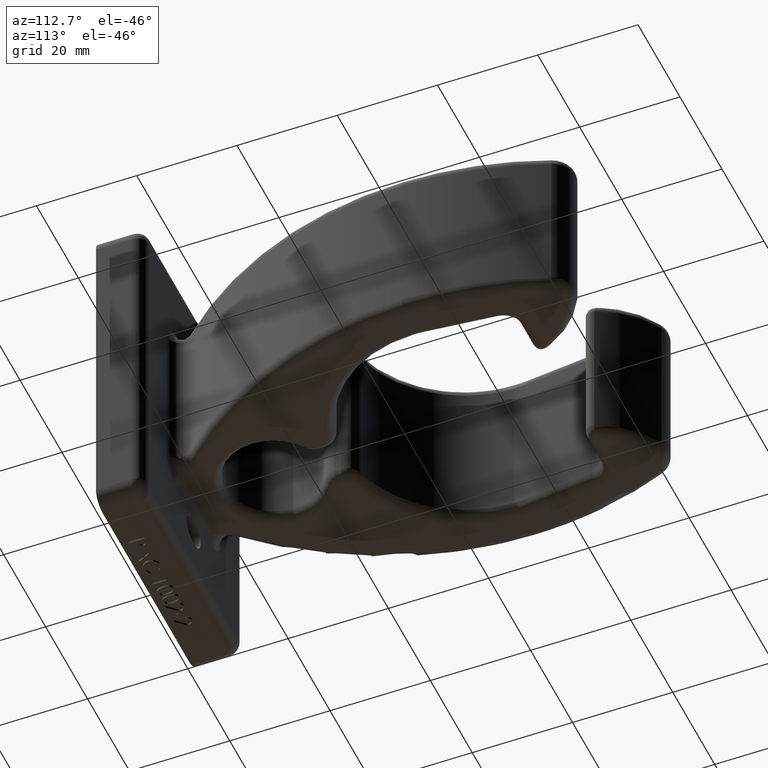
[diagram: clean part render]
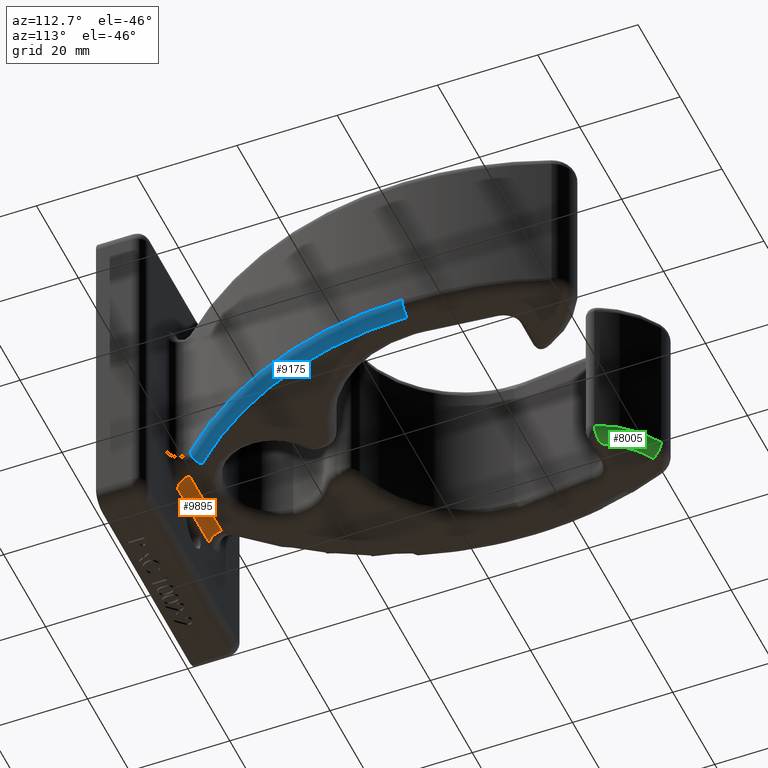
[diagram: same view with three faces highlighted in distinct colors, each labeled with its STEP entity id]
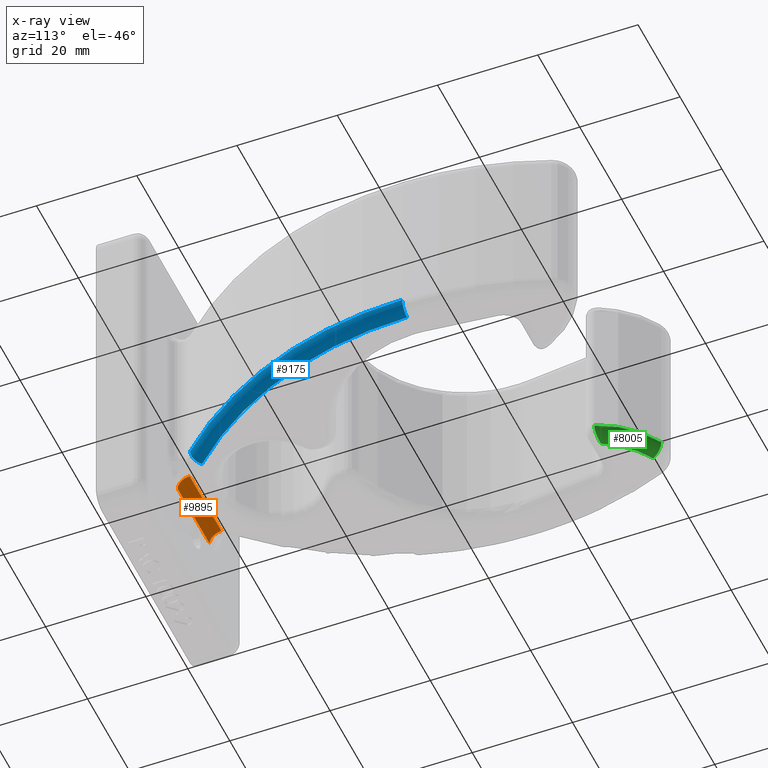
[diagram: x-ray of the same camera — body ghosted, the three highlighted faces saturated]
A machine part, auxiliary view with three faces highlighted in distinct colors.
The next image is the same camera in x-ray (body ghosted, the three faces saturated) — at least one of them is partly hidden behind the body in this view.
Their STEP definitions:

[orange] entity #9895 — the highlighted cylindrical surface (edge-blend (fillet) strip) has radius 2.3812 mm, axis along (-1, -0, 0).
#174 = ORIENTED_EDGE ( 'NONE', *, *, #13559, .F. ) ;
#458 = CIRCLE ( 'NONE', #1889, 0.09375000000000005600 ) ;
#734 = DIRECTION ( 'NONE',  ( -1.000000000000000000, -1.214154663850783700E-016, -0.0000000000000000000 ) ) ;
#741 = CIRCLE ( 'NONE', #5618, 0.09375000000000005600 ) ;
#1003 = VERTEX_POINT ( 'NONE', #12950 ) ;
#1889 = AXIS2_PLACEMENT_3D ( 'NONE', #2421, #11180, #3666 ) ;
#2278 = EDGE_CURVE ( 'NONE', #6299, #1003, #741, .T. ) ;
#2392 = VERTEX_POINT ( 'NONE', #9198 ) ;
#2421 = CARTESIAN_POINT ( 'NONE',  ( -0.2986596067394011700, 0.4687500000000000000, -0.7812500000000000000 ) ) ;
#2732 = CARTESIAN_POINT ( 'NONE',  ( 0.2986596067393987300, 0.4687500000000001700, -0.7812500000000000000 ) ) ;
#3180 = CARTESIAN_POINT ( 'NONE',  ( -0.2811144237599468900, 0.4687500000000000000, -0.6875000000000000000 ) ) ;
#3666 = DIRECTION ( 'NONE',  ( 0.0000000000000000000, 0.0000000000000000000, -1.000000000000000000 ) ) ;
#3986 = DIRECTION ( 'NONE',  ( 0.0000000000000000000, 0.0000000000000000000, -1.000000000000000000 ) ) ;
#4637 = EDGE_CURVE ( 'NONE', #2392, #1003, #6296, .T. ) ;
#4772 = DIRECTION ( 'NONE',  ( 0.0000000000000000000, -1.000000000000000000, 0.0000000000000000000 ) ) ;
#5030 = CYLINDRICAL_SURFACE ( 'NONE', #7438, 0.09374999999999998600 ) ;
#5618 = AXIS2_PLACEMENT_3D ( 'NONE', #2732, #11494, #3986 ) ;
#6035 = DIRECTION ( 'NONE',  ( -1.000000000000000000, -1.214154663850783700E-016, 0.0000000000000000000 ) ) ;
#6296 = LINE ( 'NONE', #6763, #12961 ) ;
#6299 = VERTEX_POINT ( 'NONE', #12939 ) ;
#6763 = CARTESIAN_POINT ( 'NONE',  ( 0.2811144237599435500, 0.3750000000000001100, -0.7812500000000000000 ) ) ;
#6947 = VERTEX_POINT ( 'NONE', #8625 ) ;
#7258 = CARTESIAN_POINT ( 'NONE',  ( -0.3750000000000000600, 0.4687500000000000000, -0.7812500000000000000 ) ) ;
#7438 = AXIS2_PLACEMENT_3D ( 'NONE', #7258, #6035, #4772 ) ;
#8625 = CARTESIAN_POINT ( 'NONE',  ( -0.2986596067394011200, 0.4687500000000000000, -0.6875000000000000000 ) ) ;
#9198 = CARTESIAN_POINT ( 'NONE',  ( -0.2986596067394011700, 0.3750000000000000600, -0.7812499999999998900 ) ) ;
#9571 = LINE ( 'NONE', #3180, #15891 ) ;
#9644 = EDGE_LOOP ( 'NONE', ( #15004, #13237, #174, #14934 ) ) ;
#9895 = ADVANCED_FACE ( 'NONE', ( #15064 ), #5030, .F. ) ;
#11180 = DIRECTION ( 'NONE',  ( 1.000000000000000000, 0.0000000000000000000, -0.0000000000000000000 ) ) ;
#11494 = DIRECTION ( 'NONE',  ( 1.000000000000000000, 0.0000000000000000000, -0.0000000000000000000 ) ) ;
#12939 = CARTESIAN_POINT ( 'NONE',  ( 0.2986596067393986200, 0.4687500000000001100, -0.6875000000000000000 ) ) ;
#12950 = CARTESIAN_POINT ( 'NONE',  ( 0.2986596067393987300, 0.3750000000000001100, -0.7812500000000000000 ) ) ;
#12961 = VECTOR ( 'NONE', #15544, 39.37007874015748100 ) ;
#13080 = EDGE_CURVE ( 'NONE', #6299, #6947, #9571, .T. ) ;
#13237 = ORIENTED_EDGE ( 'NONE', *, *, #4637, .F. ) ;
#13559 = EDGE_CURVE ( 'NONE', #6947, #2392, #458, .T. ) ;
#14934 = ORIENTED_EDGE ( 'NONE', *, *, #13080, .F. ) ;
#15004 = ORIENTED_EDGE ( 'NONE', *, *, #2278, .T. ) ;
#15064 = FACE_OUTER_BOUND ( 'NONE', #9644, .T. ) ;
#15544 = DIRECTION ( 'NONE',  ( 1.000000000000000000, 1.214154663850783700E-016, 0.0000000000000000000 ) ) ;
#15891 = VECTOR ( 'NONE', #734, 39.37007874015748100 ) ;

[blue] entity #9175 — the highlighted toroidal blend (fillet) surface has major radius 70.6438 mm and minor (blend) radius 2.3813 mm.
#65 = CARTESIAN_POINT ( 'NONE',  ( -1.614275554149117600, 2.539502731733396700, -0.5937499999999998900 ) ) ;
#496 = EDGE_CURVE ( 'NONE', #16307, #14736, #12721, .T. ) ;
#929 = DIRECTION ( 'NONE',  ( 1.000000000000000000, 0.0000000000000000000, 0.0000000000000000000 ) ) ;
#1375 = ORIENTED_EDGE ( 'NONE', *, *, #6726, .T. ) ;
#1614 = AXIS2_PLACEMENT_3D ( 'NONE', #11662, #4137, #12920 ) ;
#1775 = VERTEX_POINT ( 'NONE', #9083 ) ;
#2971 = ORIENTED_EDGE ( 'NONE', *, *, #9591, .F. ) ;
#3104 = TOROIDAL_SURFACE ( 'NONE', #9732, 2.781250000000000400, 0.09375000000000001400 ) ;
#3105 = CARTESIAN_POINT ( 'NONE',  ( 0.4456202960979007700, 0.5340654362698487000, -0.5991520622907808800 ) ) ;
#3138 = EDGE_CURVE ( 'NONE', #16307, #12354, #4466, .T. ) ;
#3569 = CARTESIAN_POINT ( 'NONE',  ( 1.260724445850882800, 2.539502731733396700, -0.5937499999999998900 ) ) ;
#4137 = DIRECTION ( 'NONE',  ( 0.0000000000000000000, -1.000000000000000000, 0.0000000000000000000 ) ) ;
#4466 = CIRCLE ( 'NONE', #1614, 0.09375000000000005600 ) ;
#5930 = DIRECTION ( 'NONE',  ( -0.0000000000000000000, -0.0000000000000000000, -1.000000000000000000 ) ) ;
#6187 = DIRECTION ( 'NONE',  ( -0.6976802386851277400, -0.7164092995964410600, -0.0000000000000000000 ) ) ;
#6726 = EDGE_CURVE ( 'NONE', #13401, #1775, #8950, .T. ) ;
#6846 = FACE_OUTER_BOUND ( 'NONE', #15747, .T. ) ;
#6873 = AXIS2_PLACEMENT_3D ( 'NONE', #12003, #5930, #15996 ) ;
#7037 = CIRCLE ( 'NONE', #9432, 2.875000000000000400 ) ;
#7753 = ORIENTED_EDGE ( 'NONE', *, *, #496, .F. ) ;
#8113 = CARTESIAN_POINT ( 'NONE',  ( 0.4458589326717843900, 0.5341421915284231300, -0.5964625669004657300 ) ) ;
#8184 = CARTESIAN_POINT ( 'NONE',  ( 0.3782378103534825800, 0.5990795678903838600, -0.6875000000000000000 ) ) ;
#8478 = DIRECTION ( 'NONE',  ( 0.0000000000000000000, 0.0000000000000000000, 1.000000000000000000 ) ) ;
#8883 = DIRECTION ( 'NONE',  ( 0.0000000000000000000, 0.0000000000000000000, 1.000000000000000000 ) ) ;
#8950 = B_SPLINE_CURVE_WITH_KNOTS ( 'NONE', 3,
 ( #11658, #8113, #3105, #11877 ),
 .UNSPECIFIED., .F., .F.,
 ( 4, 4 ),
 ( 0.0000000000000000000, 0.0002058276739516272900 ),
 .UNSPECIFIED. ) ;
#9083 = CARTESIAN_POINT ( 'NONE',  ( 0.4451519275033559700, 0.5339147839451919800, -0.6018193469022892200 ) ) ;
#9175 = ADVANCED_FACE ( 'NONE', ( #6846 ), #3104, .T. ) ;
#9432 = AXIS2_PLACEMENT_3D ( 'NONE', #16023, #8478, #929 ) ;
#9591 = EDGE_CURVE ( 'NONE', #13401, #12354, #7037, .T. ) ;
#9732 = AXIS2_PLACEMENT_3D ( 'NONE', #65, #8883, #10127 ) ;
#10127 = DIRECTION ( 'NONE',  ( 1.000000000000000000, 0.0000000000000000000, 0.0000000000000000000 ) ) ;
#10136 = ORIENTED_EDGE ( 'NONE', *, *, #3138, .T. ) ;
#10151 = CIRCLE ( 'NONE', #13540, 0.09375000000000000000 ) ;
#11220 = EDGE_CURVE ( 'NONE', #14736, #1775, #10151, .T. ) ;
#11658 = CARTESIAN_POINT ( 'NONE',  ( 0.4458589326717843900, 0.5341421915284232400, -0.5937499999999998900 ) ) ;
#11662 = CARTESIAN_POINT ( 'NONE',  ( 1.166974445850882600, 2.539502731733396700, -0.5937499999999998900 ) ) ;
#11877 = CARTESIAN_POINT ( 'NONE',  ( 0.4451519275033559700, 0.5339147839451919800, -0.6018193469022892200 ) ) ;
#12003 = CARTESIAN_POINT ( 'NONE',  ( -1.614275554149117600, 2.539502731733396700, -0.6875000000000000000 ) ) ;
#12347 = ORIENTED_EDGE ( 'NONE', *, *, #11220, .F. ) ;
#12354 = VERTEX_POINT ( 'NONE', #3569 ) ;
#12721 = CIRCLE ( 'NONE', #6873, 2.781250000000000400 ) ;
#12920 = DIRECTION ( 'NONE',  ( 0.0000000000000000000, 0.0000000000000000000, -1.000000000000000000 ) ) ;
#13401 = VERTEX_POINT ( 'NONE', #14252 ) ;
#13540 = AXIS2_PLACEMENT_3D ( 'NONE', #13688, #6187, #14970 ) ;
#13688 = CARTESIAN_POINT ( 'NONE',  ( 0.3782378103534825800, 0.5990795678903838600, -0.5937500000000000000 ) ) ;
#14252 = CARTESIAN_POINT ( 'NONE',  ( 0.4458589326717843900, 0.5341421915284232400, -0.5937499999999998900 ) ) ;
#14634 = CARTESIAN_POINT ( 'NONE',  ( 1.166974445850882600, 2.539502731733396700, -0.6875000000000000000 ) ) ;
#14736 = VERTEX_POINT ( 'NONE', #8184 ) ;
#14970 = DIRECTION ( 'NONE',  ( 0.7164092995964410600, -0.6976802386851276300, 0.0000000000000000000 ) ) ;
#15747 = EDGE_LOOP ( 'NONE', ( #7753, #10136, #2971, #1375, #12347 ) ) ;
#15996 = DIRECTION ( 'NONE',  ( 1.000000000000000000, 0.0000000000000000000, 0.0000000000000000000 ) ) ;
#16023 = CARTESIAN_POINT ( 'NONE',  ( -1.614275554149117600, 2.539502731733396700, -0.5937499999999998900 ) ) ;
#16307 = VERTEX_POINT ( 'NONE', #14634 ) ;

[green] entity #8005 — the highlighted toroidal blend (fillet) surface has major radius 16.6687 mm and minor (blend) radius 2.3813 mm.
#246 = AXIS2_PLACEMENT_3D ( 'NONE', #9191, #10447, #11704 ) ;
#412 = DIRECTION ( 'NONE',  ( 1.000000000000000000, 0.0000000000000000000, 0.0000000000000000000 ) ) ;
#557 = EDGE_LOOP ( 'NONE', ( #15724, #2966, #12573, #4702 ) ) ;
#684 = DIRECTION ( 'NONE',  ( 0.4665727217042240900, 0.8844828406258160600, 0.0000000000000000000 ) ) ;
#1508 = EDGE_CURVE ( 'NONE', #15964, #6118, #8586, .T. ) ;
#1611 = CARTESIAN_POINT ( 'NONE',  ( -0.5219641964570879100, 3.342822385830799700, -0.6875000000000001100 ) ) ;
#1779 = DIRECTION ( 'NONE',  ( 0.0000000000000000000, 0.0000000000000000000, 1.000000000000000000 ) ) ;
#2966 = ORIENTED_EDGE ( 'NONE', *, *, #3023, .F. ) ;
#3023 = EDGE_CURVE ( 'NONE', #6065, #6118, #8218, .T. ) ;
#4124 = CARTESIAN_POINT ( 'NONE',  ( -0.4569743253817517600, 3.337503238364261500, -0.6434181787455327500 ) ) ;
#4242 = EDGE_CURVE ( 'NONE', #15768, #6065, #10350, .T. ) ;
#4556 = AXIS2_PLACEMENT_3D ( 'NONE', #15779, #8232, #684 ) ;
#4702 = ORIENTED_EDGE ( 'NONE', *, *, #6294, .F. ) ;
#4876 = AXIS2_PLACEMENT_3D ( 'NONE', #15485, #7969, #412 ) ;
#5067 = FACE_OUTER_BOUND ( 'NONE', #557, .T. ) ;
#5412 = CARTESIAN_POINT ( 'NONE',  ( -0.4420502585492160900, 3.335911054350183300, -0.6069320185193587400 ) ) ;
#6065 = VERTEX_POINT ( 'NONE', #15567 ) ;
#6118 = VERTEX_POINT ( 'NONE', #11030 ) ;
#6294 = EDGE_CURVE ( 'NONE', #15964, #15768, #7446, .T. ) ;
#7446 = CIRCLE ( 'NONE', #4876, 0.6562500000000000000 ) ;
#7969 = DIRECTION ( 'NONE',  ( -0.0000000000000000000, -0.0000000000000000000, -1.000000000000000000 ) ) ;
#8005 = ADVANCED_FACE ( 'NONE', ( #5067 ), #14320, .T. ) ;
#8218 = CIRCLE ( 'NONE', #15409, 0.7500000000000001100 ) ;
#8232 = DIRECTION ( 'NONE',  ( 0.8844828406258155000, -0.4665727217042251500, 0.0000000000000000000 ) ) ;
#8586 = CIRCLE ( 'NONE', #4556, 0.09375000000000019400 ) ;
#9129 = CARTESIAN_POINT ( 'NONE',  ( -0.4955596055373816500, 3.341008982570067100, -0.6787737424770380300 ) ) ;
#9191 = CARTESIAN_POINT ( 'NONE',  ( -1.137447155958627200, 3.054978402147979100, -0.5937499999999998900 ) ) ;
#9299 = CARTESIAN_POINT ( 'NONE',  ( -1.137447155958627200, 3.054978402147979100, -0.5937499999999998900 ) ) ;
#10350 = B_SPLINE_CURVE_WITH_KNOTS ( 'NONE', 3,
 ( #10373, #1611, #9129, #11649, #4124, #12905, #5412, #14197 ),
 .UNSPECIFIED., .F., .F.,
 ( 4, 2, 2, 4 ),
 ( -1.002758131710549000E-005, 0.001986328286651641100, 0.002984506220636011200, 0.003982684154620381000 ),
 .UNSPECIFIED. ) ;
#10373 = CARTESIAN_POINT ( 'NONE',  ( -0.5481467005252461700, 3.343750000000000400, -0.6875000000000000000 ) ) ;
#10447 = DIRECTION ( 'NONE',  ( 0.0000000000000000000, 0.0000000000000000000, 1.000000000000000000 ) ) ;
#10538 = DIRECTION ( 'NONE',  ( 1.000000000000000000, 0.0000000000000000000, 0.0000000000000000000 ) ) ;
#11030 = CARTESIAN_POINT ( 'NONE',  ( -0.7875176146804573300, 3.718340532617340000, -0.5937499999999998900 ) ) ;
#11600 = CARTESIAN_POINT ( 'NONE',  ( -0.5481467005252461700, 3.343750000000000400, -0.6875000000000000000 ) ) ;
#11649 = CARTESIAN_POINT ( 'NONE',  ( -0.4654075318925416900, 3.338352657657774400, -0.6537308797332391800 ) ) ;
#11704 = DIRECTION ( 'NONE',  ( 1.000000000000000000, 0.0000000000000000000, 0.0000000000000000000 ) ) ;
#12573 = ORIENTED_EDGE ( 'NONE', *, *, #4242, .F. ) ;
#12905 = CARTESIAN_POINT ( 'NONE',  ( -0.4452553665888168100, 3.336274804216850400, -0.6199878916452829000 ) ) ;
#14197 = CARTESIAN_POINT ( 'NONE',  ( -0.4420502585492165300, 3.335911054350184200, -0.5937499999999998900 ) ) ;
#14320 = TOROIDAL_SURFACE ( 'NONE', #246, 0.6562500000000000000, 0.09375000000000001400 ) ;
#14891 = CARTESIAN_POINT ( 'NONE',  ( -0.8312588073402282800, 3.635420266308670100, -0.6875000000000000000 ) ) ;
#15409 = AXIS2_PLACEMENT_3D ( 'NONE', #9299, #1779, #10538 ) ;
#15485 = CARTESIAN_POINT ( 'NONE',  ( -1.137447155958627200, 3.054978402147979100, -0.6875000000000000000 ) ) ;
#15567 = CARTESIAN_POINT ( 'NONE',  ( -0.4420502585492165300, 3.335911054350184200, -0.5937499999999998900 ) ) ;
#15724 = ORIENTED_EDGE ( 'NONE', *, *, #1508, .T. ) ;
#15768 = VERTEX_POINT ( 'NONE', #11600 ) ;
#15779 = CARTESIAN_POINT ( 'NONE',  ( -0.8312588073402282800, 3.635420266308670100, -0.5937500000000000000 ) ) ;
#15964 = VERTEX_POINT ( 'NONE', #14891 ) ;